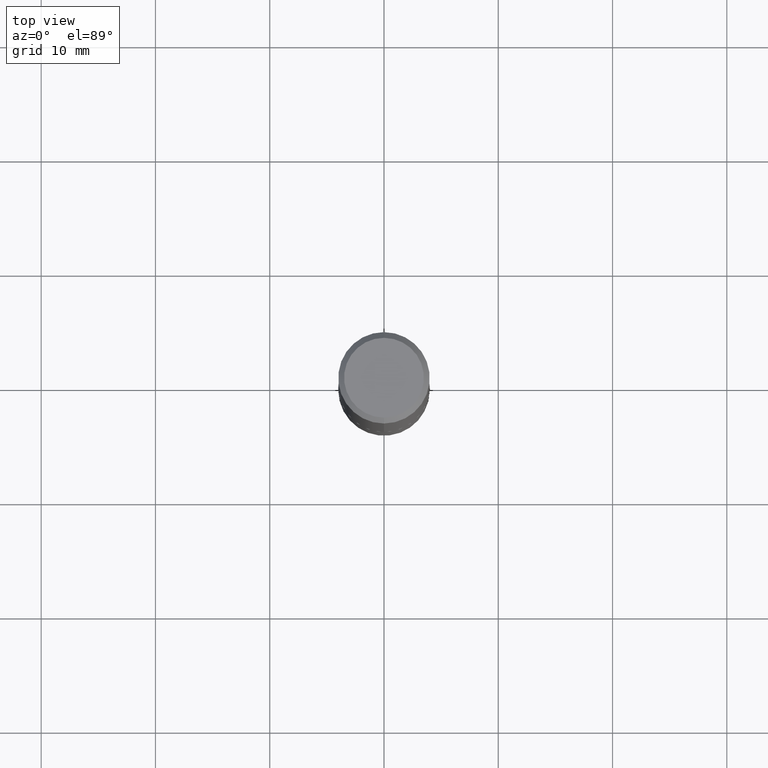
[diagram: clean part render]
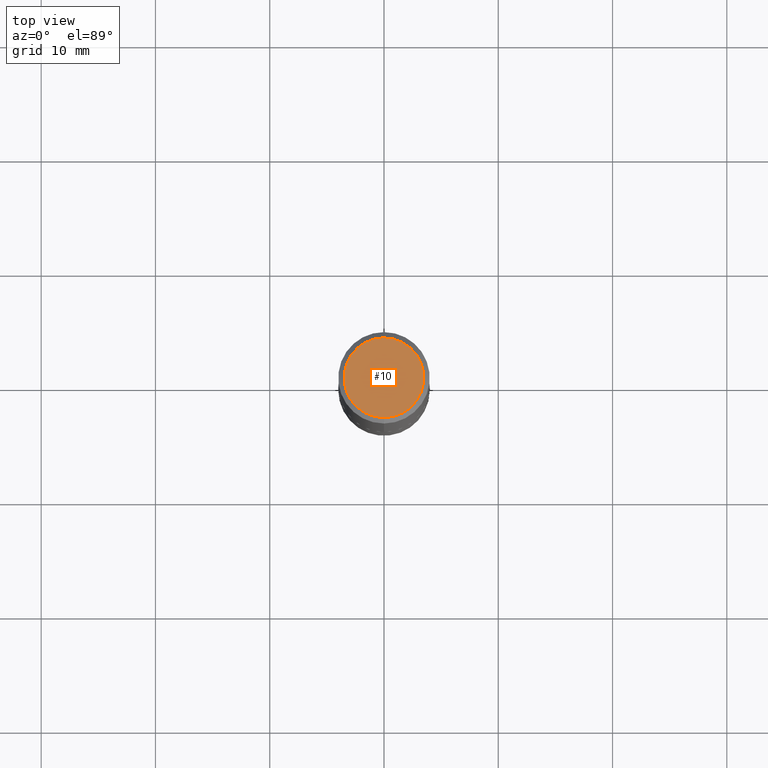
[diagram: same view with one face highlighted and labeled with its STEP entity id]
A machine part, top view. The second image highlights one B-rep face of the part: STEP entity #10.
In plain terms, the highlighted planar face has unit normal (0, -0, -1).
Its self-contained STEP definition (entity closure, byte-faithful):
#10 = ADVANCED_FACE ( 'NONE', ( #18 ), #221, .F. ) ;
#18 = FACE_OUTER_BOUND ( 'NONE', #150, .T. ) ;
#44 = DIRECTION ( 'NONE',  ( -6.982962677686265922E-15, -1.000000000000000000, 3.490498320195729137E-15 ) ) ;
#53 = DIRECTION ( 'NONE',  ( 2.446155244437773829E-29, -3.490498320195729531E-15, -1.000000000000000000 ) ) ;
#57 = EDGE_CURVE ( 'NONE', #201, #142, #125, .T. ) ;
#59 = CARTESIAN_POINT ( 'NONE',  ( 9.601573681818618699E-16, 0.1375000000000000389, -5.013536640094248788E-16 ) ) ;
#61 = AXIS2_PLACEMENT_3D ( 'NONE', #278, #406, #345 ) ;
#75 = CARTESIAN_POINT ( 'NONE',  ( 1.047450768662893258E-45, -1.494641501932098544E-31, -4.282028996502386919E-17 ) ) ;
#76 = CARTESIAN_POINT ( 'NONE',  ( 1.029986994958724379E-15, 0.1375000000000000389, -5.227638089919366809E-16 ) ) ;
#114 = CARTESIAN_POINT ( 'NONE',  ( -1.011923454671300448E-15, -0.1375000000000000389, 4.371232290618889795E-16 ) ) ;
#125 = CIRCLE ( 'NONE', #61, 0.1375000000000000389 ) ;
#142 = VERTEX_POINT ( 'NONE', #76 ) ;
#150 = EDGE_LOOP ( 'NONE', ( #206, #309 ) ) ;
#151 = AXIS2_PLACEMENT_3D ( 'NONE', #59, #53, #382 ) ;
#201 = VERTEX_POINT ( 'NONE', #114 ) ;
#206 = ORIENTED_EDGE ( 'NONE', *, *, #271, .T. ) ;
#221 = PLANE ( 'NONE',  #151 ) ;
#271 = EDGE_CURVE ( 'NONE', #142, #201, #275, .T. ) ;
#275 = CIRCLE ( 'NONE', #364, 0.1375000000000000389 ) ;
#278 = CARTESIAN_POINT ( 'NONE',  ( 1.047450768662893258E-45, -1.494641501932098544E-31, -4.282028996502386919E-17 ) ) ;
#309 = ORIENTED_EDGE ( 'NONE', *, *, #57, .T. ) ;
#329 = DIRECTION ( 'NONE',  ( -2.446155244437774389E-29, 3.490498320195729137E-15, 1.000000000000000000 ) ) ;
#345 = DIRECTION ( 'NONE',  ( -6.982962677686265922E-15, -1.000000000000000000, 3.490498320195729137E-15 ) ) ;
#364 = AXIS2_PLACEMENT_3D ( 'NONE', #75, #329, #44 ) ;
#382 = DIRECTION ( 'NONE',  ( 6.982962677686265922E-15, 1.000000000000000000, -3.490498320195729531E-15 ) ) ;
#406 = DIRECTION ( 'NONE',  ( -2.446155244437774389E-29, 3.490498320195729137E-15, 1.000000000000000000 ) ) ;